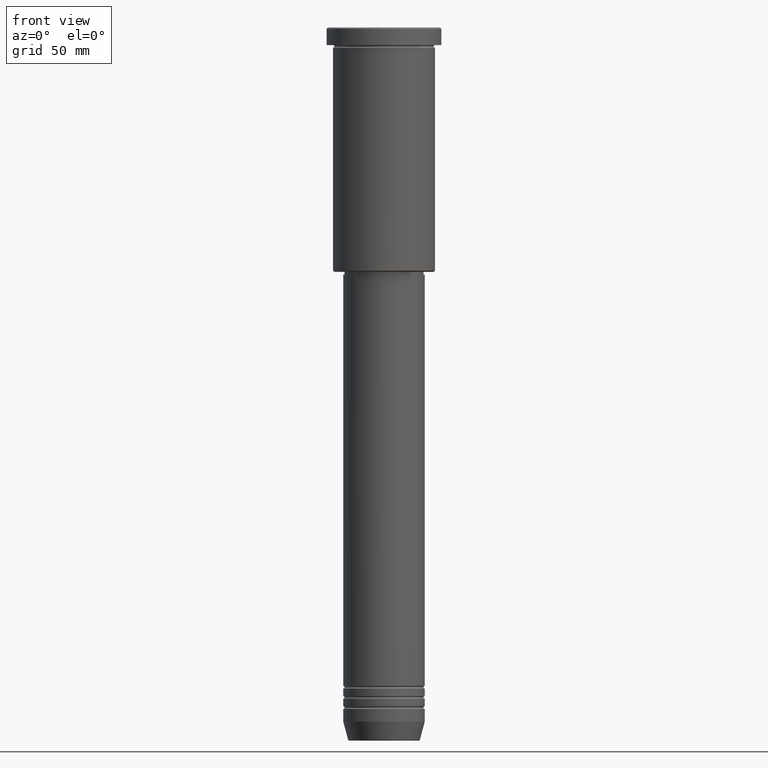
[diagram: clean part render]
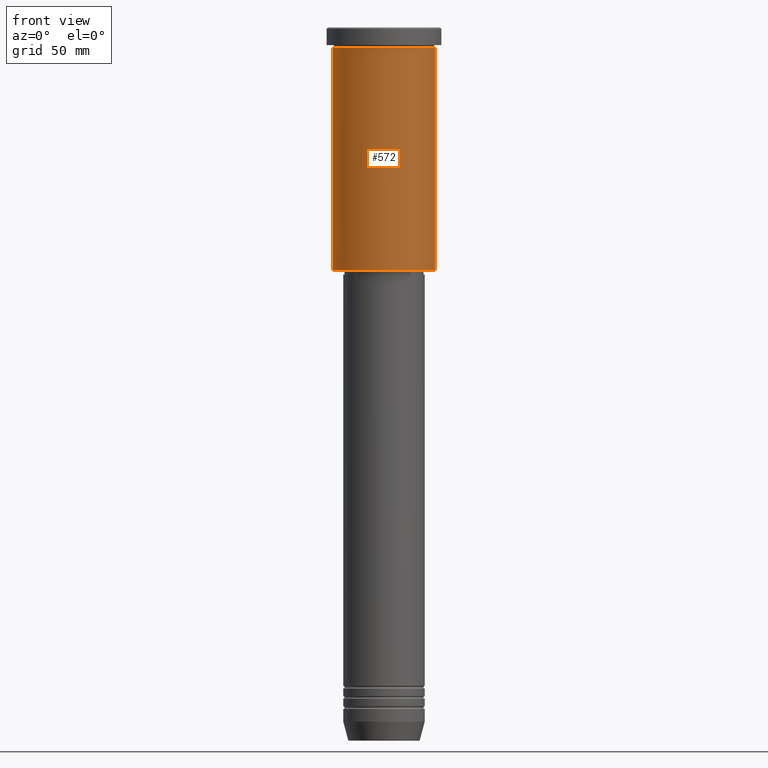
[diagram: same view with one face highlighted and labeled with its STEP entity id]
A machine part, front view. The second image highlights one B-rep face of the part: STEP entity #572.
In plain terms, the highlighted cylindrical surface (partial cylindrical patch) has radius 20 mm, axis along (-0, -0, 1).
Its self-contained STEP definition (entity closure, byte-faithful):
#3 = ORIENTED_EDGE ( 'NONE', *, *, #877, .T. ) ;
#6 = LINE ( 'NONE', #557, #529 ) ;
#71 = ORIENTED_EDGE ( 'NONE', *, *, #719, .F. ) ;
#82 = CIRCLE ( 'NONE', #746, 20.00000000000000355 ) ;
#146 = CARTESIAN_POINT ( 'NONE',  ( 20.00000000000000355, 0.000000000000000000, -95.49999999999997158 ) ) ;
#157 = DIRECTION ( 'NONE',  ( -0.000000000000000000, -0.000000000000000000, 1.000000000000000000 ) ) ;
#169 = ORIENTED_EDGE ( 'NONE', *, *, #497, .T. ) ;
#214 = LINE ( 'NONE', #397, #1051 ) ;
#222 = DIRECTION ( 'NONE',  ( -0.000000000000000000, -0.000000000000000000, 1.000000000000000000 ) ) ;
#288 = AXIS2_PLACEMENT_3D ( 'NONE', #592, #684, #1041 ) ;
#302 = CIRCLE ( 'NONE', #1044, 20.00000000000000000 ) ;
#312 = FACE_OUTER_BOUND ( 'NONE', #878, .T. ) ;
#397 = CARTESIAN_POINT ( 'NONE',  ( -20.00000000000000355, 2.449293598294706907E-15, 0.000000000000000000 ) ) ;
#402 = VERTEX_POINT ( 'NONE', #988 ) ;
#426 = CARTESIAN_POINT ( 'NONE',  ( 0.000000000000000000, 0.000000000000000000, -7.999999999999994671 ) ) ;
#448 = DIRECTION ( 'NONE',  ( -0.000000000000000000, -0.000000000000000000, 1.000000000000000000 ) ) ;
#454 = CARTESIAN_POINT ( 'NONE',  ( 20.00000000000000000, 0.000000000000000000, -7.999999999999994671 ) ) ;
#481 = DIRECTION ( 'NONE',  ( -1.000000000000000000, 0.000000000000000000, 0.000000000000000000 ) ) ;
#497 = EDGE_CURVE ( 'NONE', #402, #548, #82, .T. ) ;
#518 = EDGE_CURVE ( 'NONE', #402, #915, #214, .T. ) ;
#529 = VECTOR ( 'NONE', #448, 1000.000000000000000 ) ;
#548 = VERTEX_POINT ( 'NONE', #146 ) ;
#557 = CARTESIAN_POINT ( 'NONE',  ( 20.00000000000000355, 0.000000000000000000, 0.000000000000000000 ) ) ;
#572 = ADVANCED_FACE ( 'NONE', ( #312 ), #675, .T. ) ;
#592 = CARTESIAN_POINT ( 'NONE',  ( 0.000000000000000000, 0.000000000000000000, 0.000000000000000000 ) ) ;
#675 = CYLINDRICAL_SURFACE ( 'NONE', #288, 20.00000000000000355 ) ;
#684 = DIRECTION ( 'NONE',  ( -0.000000000000000000, -0.000000000000000000, 1.000000000000000000 ) ) ;
#705 = DIRECTION ( 'NONE',  ( 1.000000000000000000, 0.000000000000000000, 0.000000000000000000 ) ) ;
#719 = EDGE_CURVE ( 'NONE', #915, #1112, #302, .T. ) ;
#746 = AXIS2_PLACEMENT_3D ( 'NONE', #766, #222, #481 ) ;
#751 = DIRECTION ( 'NONE',  ( -0.000000000000000000, -0.000000000000000000, 1.000000000000000000 ) ) ;
#766 = CARTESIAN_POINT ( 'NONE',  ( 0.000000000000000000, 0.000000000000000000, -95.49999999999997158 ) ) ;
#877 = EDGE_CURVE ( 'NONE', #548, #1112, #6, .T. ) ;
#878 = EDGE_LOOP ( 'NONE', ( #1020, #169, #3, #71 ) ) ;
#915 = VERTEX_POINT ( 'NONE', #1094 ) ;
#988 = CARTESIAN_POINT ( 'NONE',  ( -20.00000000000000355, 2.449293598294706907E-15, -95.49999999999997158 ) ) ;
#1020 = ORIENTED_EDGE ( 'NONE', *, *, #518, .F. ) ;
#1041 = DIRECTION ( 'NONE',  ( 1.000000000000000000, 0.000000000000000000, 0.000000000000000000 ) ) ;
#1044 = AXIS2_PLACEMENT_3D ( 'NONE', #426, #157, #705 ) ;
#1051 = VECTOR ( 'NONE', #751, 1000.000000000000000 ) ;
#1094 = CARTESIAN_POINT ( 'NONE',  ( -20.00000000000000000, 2.449293598294706513E-15, -7.999999999999994671 ) ) ;
#1112 = VERTEX_POINT ( 'NONE', #454 ) ;